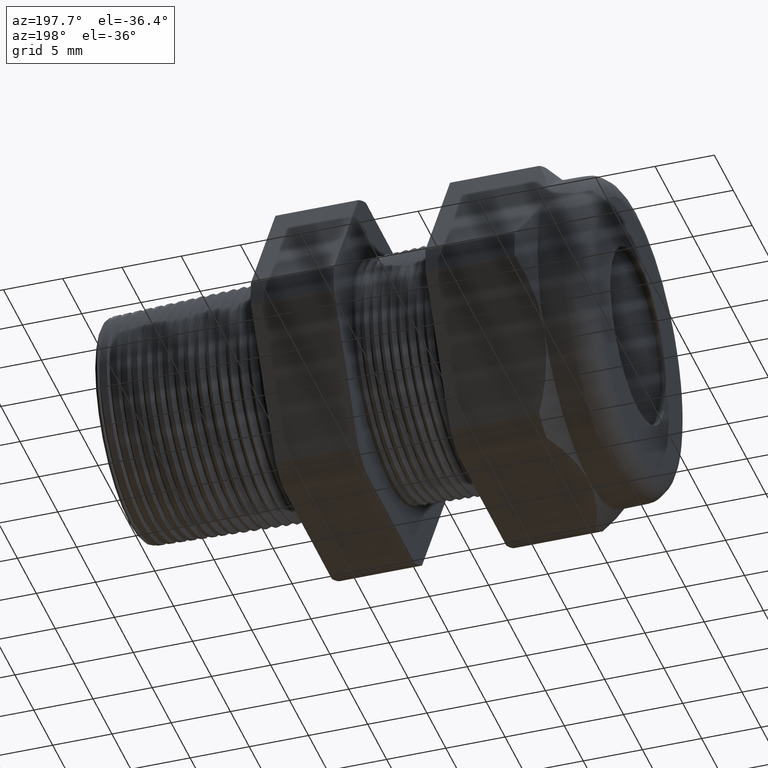
[diagram: clean part render]
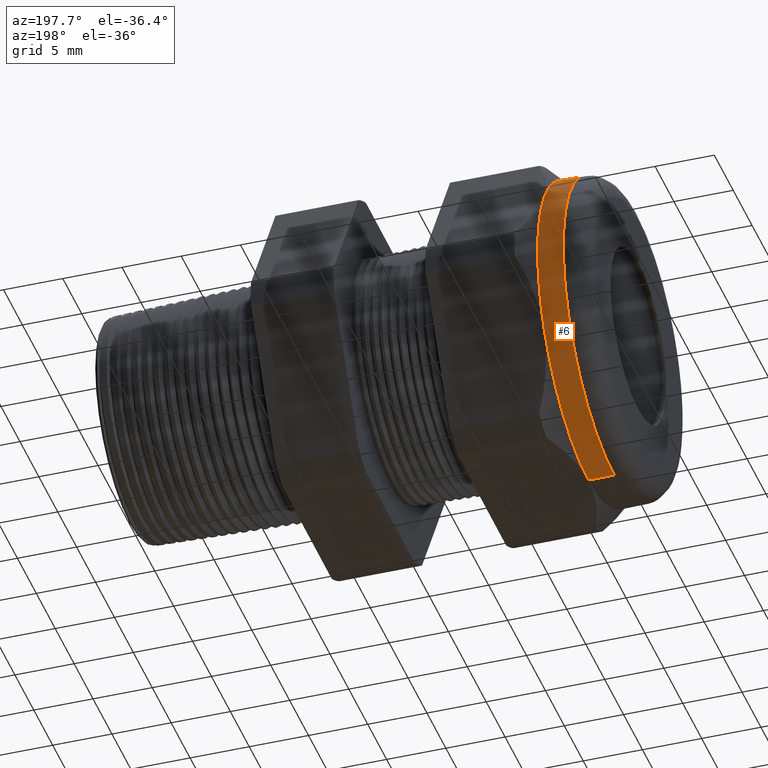
[diagram: same view with one face highlighted and labeled with its STEP entity id]
A machine part, auxiliary view. The second image highlights one B-rep face of the part: STEP entity #6.
In plain terms, the highlighted cylindrical surface (partial cylindrical patch) has radius 13.462 mm, axis along (1, 0, 0).
Its self-contained STEP definition (entity closure, byte-faithful):
#1 = ORIENTED_EDGE ( 'NONE', *, *, #55, .T. ) ;
#2 = ORIENTED_EDGE ( 'NONE', *, *, #5585, .T. ) ;
#4 = EDGE_LOOP ( 'NONE', ( #2, #1, #52, #35, #30, #25 ) ) ;
#6 = ADVANCED_FACE ( 'NONE', ( #1959 ), #1958, .T. ) ;
#25 = ORIENTED_EDGE ( 'NONE', *, *, #28, .F. ) ;
#28 = EDGE_CURVE ( 'NONE', #5588, #32, #1983, .T. ) ;
#29 = VERTEX_POINT ( 'NONE', #1979 ) ;
#30 = ORIENTED_EDGE ( 'NONE', *, *, #31, .F. ) ;
#31 = EDGE_CURVE ( 'NONE', #32, #29, #1978, .T. ) ;
#32 = VERTEX_POINT ( 'NONE', #1973 ) ;
#33 = EDGE_CURVE ( 'NONE', #29, #48, #1972, .T. ) ;
#35 = ORIENTED_EDGE ( 'NONE', *, *, #33, .F. ) ;
#48 = VERTEX_POINT ( 'NONE', #2002 ) ;
#49 = EDGE_CURVE ( 'NONE', #48, #51, #2064, .T. ) ;
#51 = VERTEX_POINT ( 'NONE', #2059 ) ;
#52 = ORIENTED_EDGE ( 'NONE', *, *, #49, .F. ) ;
#55 = EDGE_CURVE ( 'NONE', #5581, #51, #2054, .T. ) ;
#1953 = DIRECTION ( 'NONE',  ( 0.0000000000000000000, 0.0000000000000000000, -1.000000000000000000 ) ) ;
#1954 = DIRECTION ( 'NONE',  ( 1.000000000000000000, 0.0000000000000000000, 0.0000000000000000000 ) ) ;
#1955 = CARTESIAN_POINT ( 'NONE',  ( 0.0000000000000000000, 0.0000000000000000000, 0.0000000000000000000 ) ) ;
#1956 = AXIS2_PLACEMENT_3D ( 'NONE', #1955, #1954, #1953 ) ;
#1958 = CYLINDRICAL_SURFACE ( 'NONE', #1956, 0.5300000000000001400 ) ;
#1959 = FACE_OUTER_BOUND ( 'NONE', #4, .T. ) ;
#1971 = AXIS2_PLACEMENT_3D ( 'NONE', #2033, #2032, #2031 ) ;
#1972 = CIRCLE ( 'NONE', #1971, 0.5300000000000001400 ) ;
#1973 = CARTESIAN_POINT ( 'NONE',  ( -1.244645669291338600, 0.0000000000000000000, -0.5300000000000001400 ) ) ;
#1974 = DIRECTION ( 'NONE',  ( 0.0000000000000000000, 0.0000000000000000000, -1.000000000000000000 ) ) ;
#1975 = DIRECTION ( 'NONE',  ( 1.000000000000000000, 0.0000000000000000000, 0.0000000000000000000 ) ) ;
#1976 = CARTESIAN_POINT ( 'NONE',  ( -1.244645669291338600, 0.0000000000000000000, 0.0000000000000000000 ) ) ;
#1977 = AXIS2_PLACEMENT_3D ( 'NONE', #1976, #1975, #1974 ) ;
#1978 = CIRCLE ( 'NONE', #1977, 0.5300000000000001400 ) ;
#1979 = CARTESIAN_POINT ( 'NONE',  ( -1.244645669291338600, 0.4589934640057529700, -0.2650000000000001200 ) ) ;
#1980 = DIRECTION ( 'NONE',  ( 1.000000000000000000, 0.0000000000000000000, 0.0000000000000000000 ) ) ;
#1981 = VECTOR ( 'NONE', #1980, 39.37007874015748100 ) ;
#1982 = CARTESIAN_POINT ( 'NONE',  ( 0.0000000000000000000, 0.0000000000000000000, -0.5300000000000001400 ) ) ;
#1983 = LINE ( 'NONE', #1982, #1981 ) ;
#2002 = CARTESIAN_POINT ( 'NONE',  ( -1.244645669291338600, 0.4589934640057528600, 0.2650000000000001200 ) ) ;
#2031 = DIRECTION ( 'NONE',  ( 0.0000000000000000000, 0.0000000000000000000, -1.000000000000000000 ) ) ;
#2032 = DIRECTION ( 'NONE',  ( 1.000000000000000000, 0.0000000000000000000, 0.0000000000000000000 ) ) ;
#2033 = CARTESIAN_POINT ( 'NONE',  ( -1.244645669291338600, 0.0000000000000000000, 0.0000000000000000000 ) ) ;
#2051 = DIRECTION ( 'NONE',  ( 1.000000000000000000, 0.0000000000000000000, 0.0000000000000000000 ) ) ;
#2052 = VECTOR ( 'NONE', #2051, 39.37007874015748100 ) ;
#2053 = CARTESIAN_POINT ( 'NONE',  ( 0.0000000000000000000, 6.490628035480972400E-017, 0.5300000000000001400 ) ) ;
#2054 = LINE ( 'NONE', #2053, #2052 ) ;
#2059 = CARTESIAN_POINT ( 'NONE',  ( -1.244645669291338600, 0.0000000000000000000, 0.5300000000000001400 ) ) ;
#2060 = DIRECTION ( 'NONE',  ( 0.0000000000000000000, 0.0000000000000000000, -1.000000000000000000 ) ) ;
#2061 = DIRECTION ( 'NONE',  ( 1.000000000000000000, 0.0000000000000000000, 0.0000000000000000000 ) ) ;
#2062 = CARTESIAN_POINT ( 'NONE',  ( -1.244645669291338600, 0.0000000000000000000, 0.0000000000000000000 ) ) ;
#2063 = AXIS2_PLACEMENT_3D ( 'NONE', #2062, #2061, #2060 ) ;
#2064 = CIRCLE ( 'NONE', #2063, 0.5300000000000001400 ) ;
#5452 = CARTESIAN_POINT ( 'NONE',  ( -1.330000000000000100, 0.0000000000000000000, -0.5300000000000001400 ) ) ;
#5453 = DIRECTION ( 'NONE',  ( 0.0000000000000000000, 0.0000000000000000000, 1.000000000000000000 ) ) ;
#5454 = DIRECTION ( 'NONE',  ( 1.000000000000000000, 0.0000000000000000000, 0.0000000000000000000 ) ) ;
#5455 = CARTESIAN_POINT ( 'NONE',  ( -1.330000000000000100, 0.0000000000000000000, 0.0000000000000000000 ) ) ;
#5456 = AXIS2_PLACEMENT_3D ( 'NONE', #5455, #5454, #5453 ) ;
#5457 = CIRCLE ( 'NONE', #5456, 0.5300000000000001400 ) ;
#5463 = CARTESIAN_POINT ( 'NONE',  ( -1.330000000000000100, 6.490628035480972400E-017, 0.5300000000000001400 ) ) ;
#5581 = VERTEX_POINT ( 'NONE', #5463 ) ;
#5585 = EDGE_CURVE ( 'NONE', #5588, #5581, #5457, .T. ) ;
#5588 = VERTEX_POINT ( 'NONE', #5452 ) ;